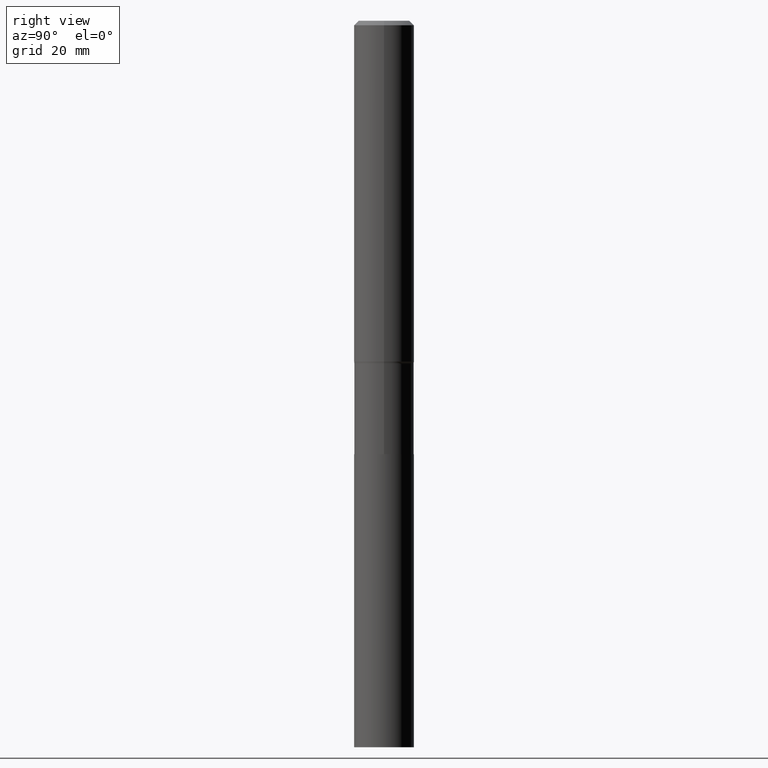
[diagram: clean part render]
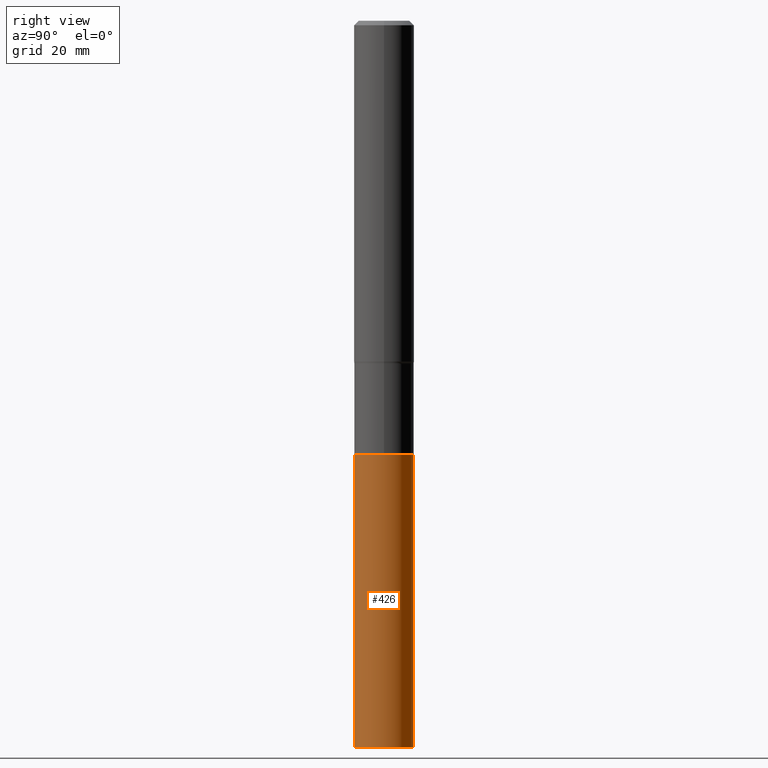
[diagram: same view with one face highlighted and labeled with its STEP entity id]
A machine part, right view. The second image highlights one B-rep face of the part: STEP entity #426.
In plain terms, the highlighted cylindrical surface (edge-blend (fillet) strip) has radius 5.9538 mm, axis along (-0, 0, 1).
Its self-contained STEP definition (entity closure, byte-faithful):
#14 = CARTESIAN_POINT ( 'NONE',  ( 1.665512172621757844E-15, 0.2343999999999881179, -3.405700000000000838 ) ) ;
#22 = EDGE_CURVE ( 'NONE', #217, #130, #355, .T. ) ;
#32 = CARTESIAN_POINT ( 'NONE',  ( 1.665512172621786046E-15, 0.2343999999999800687, -5.708700000000002106 ) ) ;
#37 = ORIENTED_EDGE ( 'NONE', *, *, #316, .T. ) ;
#56 = FACE_OUTER_BOUND ( 'NONE', #193, .T. ) ;
#66 = CIRCLE ( 'NONE', #88, 0.2343999999999999972 ) ;
#78 = DIRECTION ( 'NONE',  ( -6.982962677686265922E-15, -1.000000000000000000, 4.661856644478264948E-15 ) ) ;
#85 = CARTESIAN_POINT ( 'NONE',  ( 1.396009985441299727E-28, -1.993231775951734575E-14, -5.708700000000001218 ) ) ;
#88 = AXIS2_PLACEMENT_3D ( 'NONE', #304, #377, #455 ) ;
#100 = LINE ( 'NONE', #14, #270 ) ;
#114 = ORIENTED_EDGE ( 'NONE', *, *, #277, .F. ) ;
#120 = AXIS2_PLACEMENT_3D ( 'NONE', #85, #197, #78 ) ;
#130 = VERTEX_POINT ( 'NONE', #32 ) ;
#135 = LINE ( 'NONE', #338, #371 ) ;
#144 = DIRECTION ( 'NONE',  ( -2.445317733907196105E-29, 3.491697682943656499E-15, 1.000000000000000000 ) ) ;
#158 = AXIS2_PLACEMENT_3D ( 'NONE', #460, #144, #462 ) ;
#162 = DIRECTION ( 'NONE',  ( -2.445317733907196105E-29, 3.491697682943656499E-15, 1.000000000000000000 ) ) ;
#193 = EDGE_LOOP ( 'NONE', ( #405, #37, #390, #114 ) ) ;
#197 = DIRECTION ( 'NONE',  ( -2.445317733907196105E-29, 3.491697682943656499E-15, 1.000000000000000000 ) ) ;
#217 = VERTEX_POINT ( 'NONE', #293 ) ;
#233 = CARTESIAN_POINT ( 'NONE',  ( -1.636806451649577489E-15, -0.2344000000000118766, -3.405699999999999505 ) ) ;
#270 = VECTOR ( 'NONE', #162, 39.37007874015748143 ) ;
#277 = EDGE_CURVE ( 'NONE', #217, #300, #135, .T. ) ;
#287 = VERTEX_POINT ( 'NONE', #339 ) ;
#293 = CARTESIAN_POINT ( 'NONE',  ( -1.636806451649521085E-15, -0.2344000000000199535, -5.708700000000000330 ) ) ;
#300 = VERTEX_POINT ( 'NONE', #233 ) ;
#304 = CARTESIAN_POINT ( 'NONE',  ( 8.328533113224721021E-29, -1.189093799569810036E-14, -3.405700000000000394 ) ) ;
#315 = CYLINDRICAL_SURFACE ( 'NONE', #158, 0.2343999999999999972 ) ;
#316 = EDGE_CURVE ( 'NONE', #130, #287, #100, .T. ) ;
#325 = EDGE_CURVE ( 'NONE', #300, #287, #66, .T. ) ;
#338 = CARTESIAN_POINT ( 'NONE',  ( -1.636806451649577489E-15, -0.2344000000000118766, -3.405699999999999505 ) ) ;
#339 = CARTESIAN_POINT ( 'NONE',  ( 1.665512172621814247E-15, 0.2343999999999880901, -3.405700000000000838 ) ) ;
#355 = CIRCLE ( 'NONE', #120, 0.2343999999999999972 ) ;
#371 = VECTOR ( 'NONE', #453, 39.37007874015748143 ) ;
#377 = DIRECTION ( 'NONE',  ( -2.445317733907196105E-29, 3.491697682943656499E-15, 1.000000000000000000 ) ) ;
#390 = ORIENTED_EDGE ( 'NONE', *, *, #325, .F. ) ;
#405 = ORIENTED_EDGE ( 'NONE', *, *, #22, .T. ) ;
#426 = ADVANCED_FACE ( 'NONE', ( #56 ), #315, .T. ) ;
#453 = DIRECTION ( 'NONE',  ( -2.445317733907196105E-29, 3.491697682943656499E-15, 1.000000000000000000 ) ) ;
#455 = DIRECTION ( 'NONE',  ( -6.982962677686265922E-15, -1.000000000000000000, 2.330928322239132474E-15 ) ) ;
#460 = CARTESIAN_POINT ( 'NONE',  ( 8.328533113224721021E-29, -1.189093799569810036E-14, -3.405700000000000394 ) ) ;
#462 = DIRECTION ( 'NONE',  ( -6.982962677686265922E-15, -1.000000000000000000, 2.330928322239132474E-15 ) ) ;